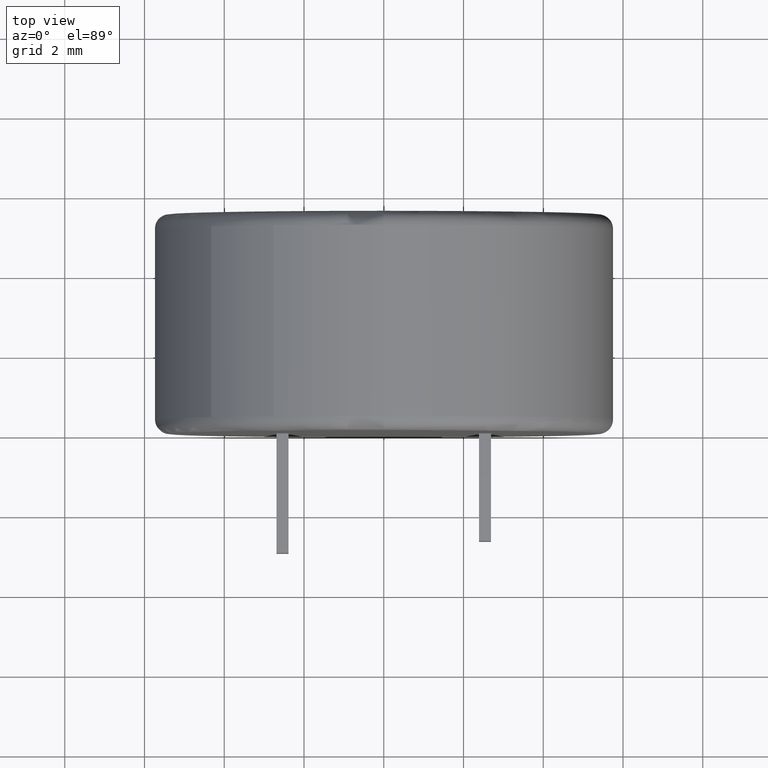
[diagram: clean part render]
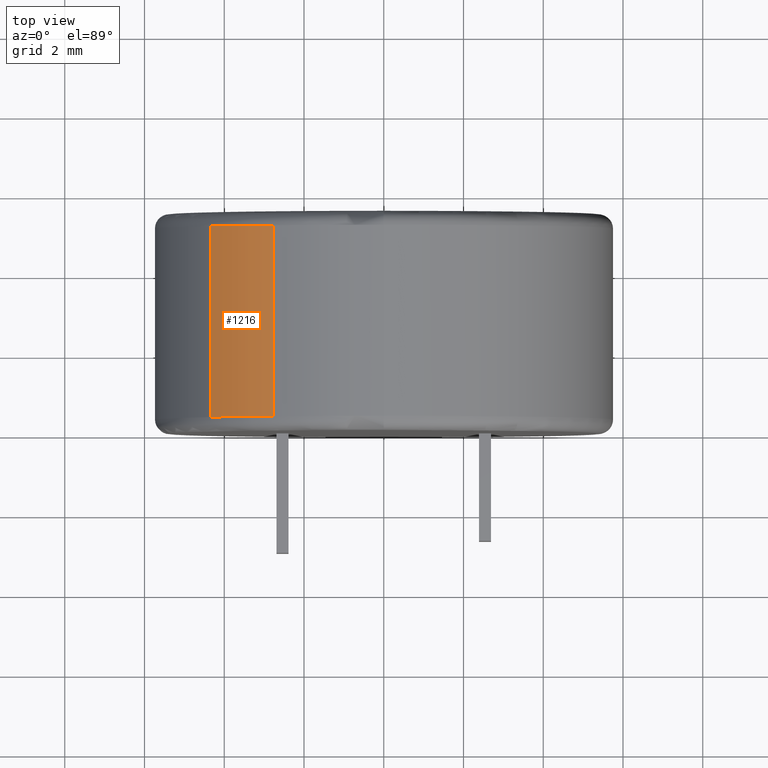
[diagram: same view with one face highlighted and labeled with its STEP entity id]
A machine part, top view. The second image highlights one B-rep face of the part: STEP entity #1216.
In plain terms, the highlighted cylindrical surface (partial cylindrical patch) has radius 5.76 mm, axis along (-0, -1, -0).
Its self-contained STEP definition (entity closure, byte-faithful):
#46 = ORIENTED_EDGE ( 'NONE', *, *, #1525, .T. ) ;
#59 = ORIENTED_EDGE ( 'NONE', *, *, #2426, .T. ) ;
#72 = CARTESIAN_POINT ( 'NONE',  ( -4.332494966232056700, 0.3547500000000000100, 3.795666919998893300 ) ) ;
#138 = EDGE_CURVE ( 'NONE', #1131, #2419, #1000, .T. ) ;
#140 = CARTESIAN_POINT ( 'NONE',  ( 0.0000000000000000000, 5.145249999999999900, 0.0000000000000000000 ) ) ;
#181 = VECTOR ( 'NONE', #1197, 1000.000000000000000 ) ;
#460 = EDGE_CURVE ( 'NONE', #2432, #1131, #703, .T. ) ;
#485 = DIRECTION ( 'NONE',  ( -0.0000000000000000000, -1.000000000000000000, -0.0000000000000000000 ) ) ;
#668 = CYLINDRICAL_SURFACE ( 'NONE', #1678, 5.759999999999999800 ) ;
#703 = CIRCLE ( 'NONE', #1165, 5.759999999999999800 ) ;
#706 = VECTOR ( 'NONE', #485, 1000.000000000000000 ) ;
#782 = DIRECTION ( 'NONE',  ( 0.0000000000000000000, 0.0000000000000000000, -1.000000000000000000 ) ) ;
#827 = AXIS2_PLACEMENT_3D ( 'NONE', #2403, #1769, #1991 ) ;
#895 = CIRCLE ( 'NONE', #827, 5.759999999999999800 ) ;
#962 = VERTEX_POINT ( 'NONE', #1416 ) ;
#1000 = LINE ( 'NONE', #1565, #706 ) ;
#1086 = ORIENTED_EDGE ( 'NONE', *, *, #460, .T. ) ;
#1131 = VERTEX_POINT ( 'NONE', #1712 ) ;
#1165 = AXIS2_PLACEMENT_3D ( 'NONE', #140, #1844, #782 ) ;
#1197 = DIRECTION ( 'NONE',  ( 0.0000000000000000000, 1.000000000000000000, 0.0000000000000000000 ) ) ;
#1216 = ADVANCED_FACE ( 'NONE', ( #2177 ), #668, .T. ) ;
#1416 = CARTESIAN_POINT ( 'NONE',  ( -2.779275893727151100, 0.3547500000000000100, 5.045118978433228200 ) ) ;
#1525 = EDGE_CURVE ( 'NONE', #962, #2432, #2523, .T. ) ;
#1538 = CARTESIAN_POINT ( 'NONE',  ( -2.779275893727162700, 5.145249999999999900, 5.045118978433222000 ) ) ;
#1565 = CARTESIAN_POINT ( 'NONE',  ( -4.332494966232055800, 5.500000000000000000, 3.795666919998895100 ) ) ;
#1602 = CARTESIAN_POINT ( 'NONE',  ( -2.779275893727162700, 5.500000000000000000, 5.045118978433222000 ) ) ;
#1678 = AXIS2_PLACEMENT_3D ( 'NONE', #2734, #2555, #1724 ) ;
#1712 = CARTESIAN_POINT ( 'NONE',  ( -4.332494966232055800, 5.145249999999999900, 3.795666919998895100 ) ) ;
#1724 = DIRECTION ( 'NONE',  ( 0.0000000000000000000, 0.0000000000000000000, -1.000000000000000000 ) ) ;
#1769 = DIRECTION ( 'NONE',  ( 0.0000000000000000000, 1.000000000000000000, 0.0000000000000000000 ) ) ;
#1844 = DIRECTION ( 'NONE',  ( -0.0000000000000000000, -1.000000000000000000, -0.0000000000000000000 ) ) ;
#1991 = DIRECTION ( 'NONE',  ( 0.0000000000000000000, 0.0000000000000000000, -1.000000000000000000 ) ) ;
#2177 = FACE_OUTER_BOUND ( 'NONE', #2268, .T. ) ;
#2190 = ORIENTED_EDGE ( 'NONE', *, *, #138, .T. ) ;
#2268 = EDGE_LOOP ( 'NONE', ( #2190, #59, #46, #1086 ) ) ;
#2403 = CARTESIAN_POINT ( 'NONE',  ( 0.0000000000000000000, 0.3547500000000000100, 0.0000000000000000000 ) ) ;
#2419 = VERTEX_POINT ( 'NONE', #72 ) ;
#2426 = EDGE_CURVE ( 'NONE', #2419, #962, #895, .T. ) ;
#2432 = VERTEX_POINT ( 'NONE', #1538 ) ;
#2523 = LINE ( 'NONE', #1602, #181 ) ;
#2555 = DIRECTION ( 'NONE',  ( -0.0000000000000000000, -1.000000000000000000, -0.0000000000000000000 ) ) ;
#2734 = CARTESIAN_POINT ( 'NONE',  ( 0.0000000000000000000, 5.500000000000000000, 0.0000000000000000000 ) ) ;